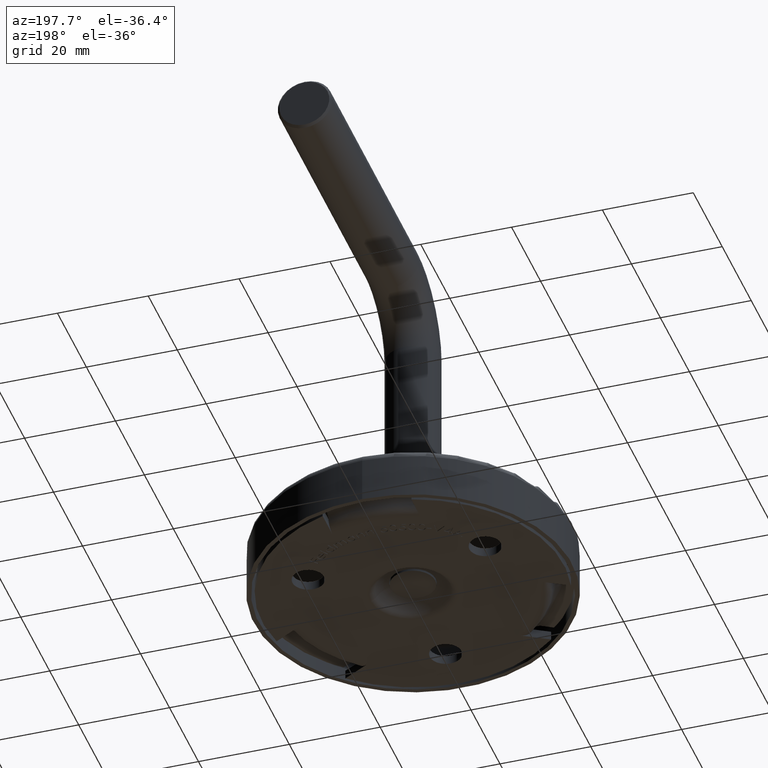
[diagram: clean part render]
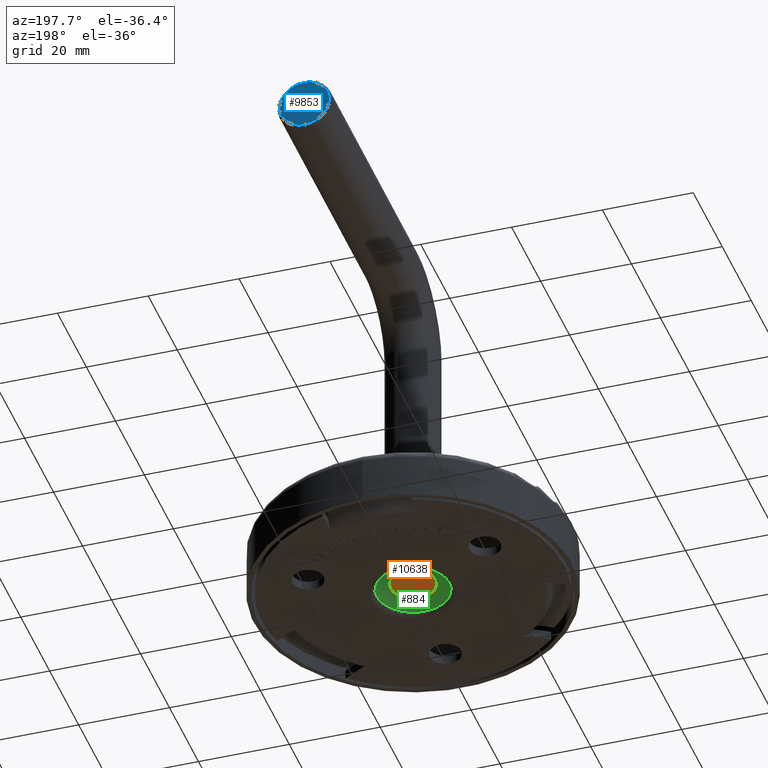
[diagram: same view with three faces highlighted in distinct colors, each labeled with its STEP entity id]
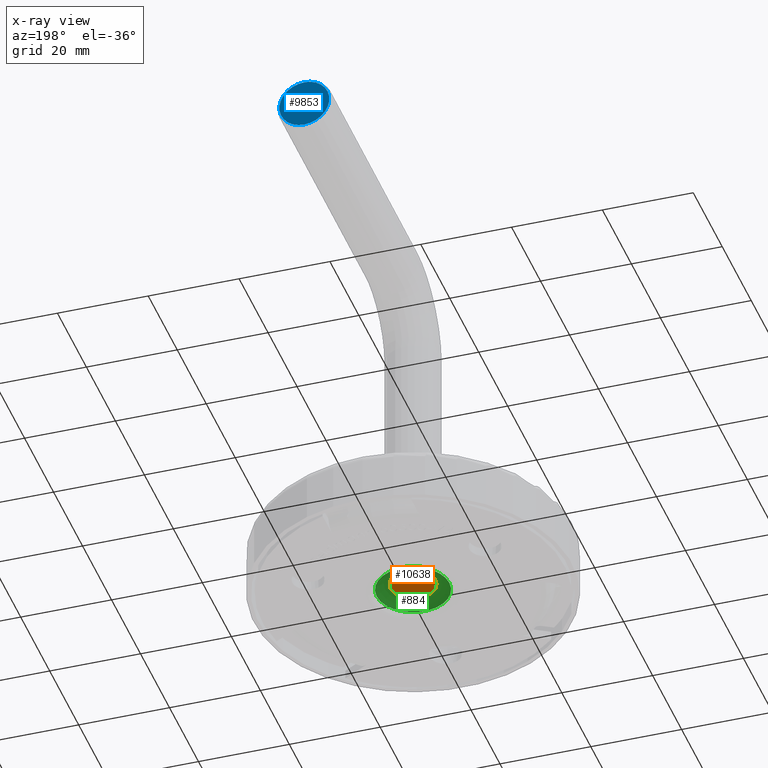
[diagram: x-ray of the same camera — body ghosted, the three highlighted faces saturated]
A machine part, auxiliary view with three faces highlighted in distinct colors.
The next image is the same camera in x-ray (body ghosted, the three faces saturated) — at least one of them is partly hidden behind the body in this view.
Their STEP definitions:

[orange] entity #10638 — the highlighted planar face has unit normal (0, 0, 1).
#1465 = DIRECTION ( 'NONE',  ( 1.000000000000000000, 0.0000000000000000000, -0.0000000000000000000 ) ) ;
#1523 = DIRECTION ( 'NONE',  ( 0.0000000000000000000, 0.0000000000000000000, 1.000000000000000000 ) ) ;
#3677 = CIRCLE ( 'NONE', #10933, 4.900000000000001200 ) ;
#4428 = CARTESIAN_POINT ( 'NONE',  ( 0.0000000000000000000, 0.0000000000000000000, 0.0000000000000000000 ) ) ;
#4760 = FACE_OUTER_BOUND ( 'NONE', #13593, .T. ) ;
#7837 = DIRECTION ( 'NONE',  ( -1.000000000000000000, 0.0000000000000000000, 0.0000000000000000000 ) ) ;
#8807 = VERTEX_POINT ( 'NONE', #11476 ) ;
#9113 = DIRECTION ( 'NONE',  ( 0.0000000000000000000, 0.0000000000000000000, -1.000000000000000000 ) ) ;
#9491 = PLANE ( 'NONE',  #13965 ) ;
#10638 = ADVANCED_FACE ( 'NONE', ( #4760 ), #9491, .F. ) ;
#10933 = AXIS2_PLACEMENT_3D ( 'NONE', #4428, #9113, #7837 ) ;
#11476 = CARTESIAN_POINT ( 'NONE',  ( -4.900000000000001200, 0.0000000000000000000, 0.0000000000000000000 ) ) ;
#12671 = ORIENTED_EDGE ( 'NONE', *, *, #12966, .T. ) ;
#12966 = EDGE_CURVE ( 'NONE', #8807, #8807, #3677, .T. ) ;
#12988 = CARTESIAN_POINT ( 'NONE',  ( 0.0000000000000000000, 0.0000000000000000000, 0.0000000000000000000 ) ) ;
#13593 = EDGE_LOOP ( 'NONE', ( #12671 ) ) ;
#13965 = AXIS2_PLACEMENT_3D ( 'NONE', #12988, #1523, #1465 ) ;

[blue] entity #9853 — the highlighted planar face has unit normal (0, 1, 0).
#18 = ORIENTED_EDGE ( 'NONE', *, *, #9535, .T. ) ;
#1907 = CARTESIAN_POINT ( 'NONE',  ( 0.0000000000000000000, 74.99999999999998600, 72.69999999999998900 ) ) ;
#5119 = CARTESIAN_POINT ( 'NONE',  ( 0.0000000000000000000, 74.99999999999998600, 72.69999999999998900 ) ) ;
#5258 = DIRECTION ( 'NONE',  ( 1.000000000000000000, 0.0000000000000000000, 0.0000000000000000000 ) ) ;
#5301 = DIRECTION ( 'NONE',  ( -0.0000000000000000000, 1.000000000000000000, 6.123233995736766000E-017 ) ) ;
#5302 = CIRCLE ( 'NONE', #12916, 5.500000000000032900 ) ;
#5858 = CARTESIAN_POINT ( 'NONE',  ( 0.0000000000000000000, 74.99999999999998600, 78.20000000000001700 ) ) ;
#6305 = VERTEX_POINT ( 'NONE', #5858 ) ;
#6794 = AXIS2_PLACEMENT_3D ( 'NONE', #5119, #5301, #5258 ) ;
#7487 = FACE_OUTER_BOUND ( 'NONE', #10104, .T. ) ;
#7697 = DIRECTION ( 'NONE',  ( 0.0000000000000000000, 1.000000000000000000, 6.123233995736766000E-017 ) ) ;
#8633 = DIRECTION ( 'NONE',  ( 0.0000000000000000000, 0.0000000000000000000, 1.000000000000000000 ) ) ;
#9535 = EDGE_CURVE ( 'NONE', #6305, #6305, #5302, .T. ) ;
#9853 = ADVANCED_FACE ( 'NONE', ( #7487 ), #11977, .T. ) ;
#10104 = EDGE_LOOP ( 'NONE', ( #18 ) ) ;
#11977 = PLANE ( 'NONE',  #6794 ) ;
#12916 = AXIS2_PLACEMENT_3D ( 'NONE', #1907, #7697, #8633 ) ;

[green] entity #884 — the highlighted toroidal blend (fillet) surface has major radius 4.2205 mm and minor (blend) radius 4.8 mm.
#109 = CARTESIAN_POINT ( 'NONE',  ( 4.999999999999981300, 4.764186375851063900E-030, -2.736277530152568800 ) ) ;
#276 = DIRECTION ( 'NONE',  ( 1.053822821695700200E-030, 2.095411779493315200E-031, -1.000000000000000000 ) ) ;
#438 = VERTEX_POINT ( 'NONE', #109 ) ;
#632 = EDGE_CURVE ( 'NONE', #10071, #10071, #12401, .T. ) ;
#694 = AXIS2_PLACEMENT_3D ( 'NONE', #13972, #1513, #12925 ) ;
#884 = ADVANCED_FACE ( 'NONE', ( #8811, #2770 ), #6490, .F. ) ;
#1513 = DIRECTION ( 'NONE',  ( 1.053822821695700200E-030, 2.095411779493315200E-031, -1.000000000000000000 ) ) ;
#2624 = CARTESIAN_POINT ( 'NONE',  ( 1.010515034502719300E-030, 2.009298966637411500E-031, -0.9589041095890342700 ) ) ;
#2770 = FACE_OUTER_BOUND ( 'NONE', #6675, .T. ) ;
#3640 = CARTESIAN_POINT ( 'NONE',  ( -7.999999999999970700, -6.504387797714830800E-030, -0.9589041095890342700 ) ) ;
#6032 = DIRECTION ( 'NONE',  ( -1.000000000000000000, -8.381647117973246900E-031, 0.0000000000000000000 ) ) ;
#6490 = TOROIDAL_SURFACE ( 'NONE', #14008, 4.220464781185778100, 4.799999999999998900 ) ;
#6675 = EDGE_LOOP ( 'NONE', ( #13744 ) ) ;
#6931 = ORIENTED_EDGE ( 'NONE', *, *, #12677, .T. ) ;
#7177 = DIRECTION ( 'NONE',  ( 1.053822821695700200E-030, 2.095411779493315200E-031, -1.000000000000000000 ) ) ;
#8220 = CARTESIAN_POINT ( 'NONE',  ( -2.107645643391384600E-030, -4.190823558986596300E-031, 1.999999999999984900 ) ) ;
#8420 = DIRECTION ( 'NONE',  ( -1.000000000000000000, -8.381647117973246900E-031, -1.053822821695700200E-030 ) ) ;
#8666 = AXIS2_PLACEMENT_3D ( 'NONE', #2624, #276, #6032 ) ;
#8811 = FACE_OUTER_BOUND ( 'NONE', #8825, .T. ) ;
#8825 = EDGE_LOOP ( 'NONE', ( #6931 ) ) ;
#10071 = VERTEX_POINT ( 'NONE', #3640 ) ;
#12401 = CIRCLE ( 'NONE', #8666, 7.999999999999970700 ) ;
#12433 = CIRCLE ( 'NONE', #694, 4.999999999999981300 ) ;
#12677 = EDGE_CURVE ( 'NONE', #438, #438, #12433, .T. ) ;
#12925 = DIRECTION ( 'NONE',  ( 1.000000000000000000, 8.381647117973246900E-031, 0.0000000000000000000 ) ) ;
#13744 = ORIENTED_EDGE ( 'NONE', *, *, #632, .F. ) ;
#13972 = CARTESIAN_POINT ( 'NONE',  ( 2.883551707767918900E-030, 5.733628168644561600E-031, -2.736277530152568800 ) ) ;
#14008 = AXIS2_PLACEMENT_3D ( 'NONE', #8220, #7177, #8420 ) ;